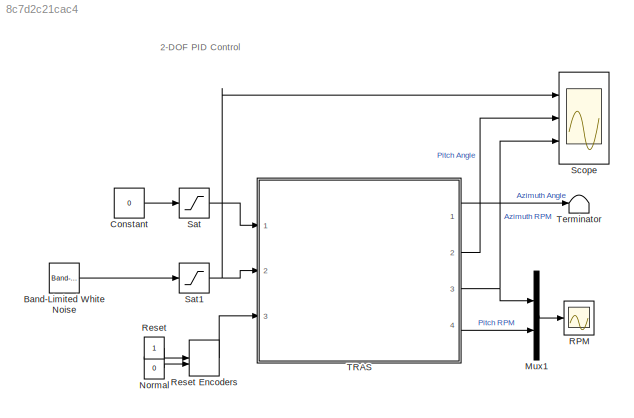
MODEL slx_8c7d2c21cac4
KIND model
CONFIG AbsTol = 1e-6
CONFIG EnableMultiTasking = off
CONFIG FixedStep = 0.01
CONFIG MaxStep = auto
CONFIG MinStep = auto
CONFIG RelTol = 1e-3
CONFIG SampleTimeConstraint = Unconstrained
CONFIG SolverName = ode5
CONFIG StartTime = 0.0
CONFIG StopTime = 9999
BLOCK [Reference] Band-Limited White Noise  REF=simulink/Sources/Band-Limited
White Noise
  Ports = [0, 1]
  SourceBlock = simulink/Sources/Band-Limited\nWhite Noise
  SourceProductBaseCode = SL
  SourceType = Band-Limited White Noise.
BLOCK [Constant] Constant
  Value = 0
BLOCK [Mux] Mux1
  DisplayOption = bar
  Inputs = 2
  Ports = [2, 1]
BLOCK [Constant] Normal
  Value = 0
BLOCK [Scope] RPM
  ExtModeLoggingTrig = on
  ExtModeUploadOption = log
  Floating = off
  NumInputPorts = 1
  Ports = [1]
  ScopeSpecificationString = Simulink.scopes.TimeScopeBlockCfg('CurrentConfiguration', extmgr.ConfigurationSet(extmgr.Configuration('Core','General UI',true),extmgr.Configuration('Core','Source UI',true),extmgr.Configuration('Sources','WiredSimulink',true,'DataLogging',true,'DataLoggingVariableName','RPM_','DataLoggingSaveFormat','StructureWithTime','DataLoggingMaxPoints','12000','DataLoggingLimitDataPoints',true,'DataLogging...<+1854ch>
BLOCK [Constant] Reset
  NameLocation = top
BLOCK [ManualSwitch] Reset Encoders
  CurrentSetting = 0
BLOCK [Saturate] Sat
  LowerLimit = -0.3
  UpperLimit = 0.8
BLOCK [Saturate] Sat1
  LowerLimit = -.8
  UpperLimit = 0.8
BLOCK [Scope] Scope
  Floating = off
  NumInputPorts = 3
  Ports = [3]
  ScopeSpecificationString = Simulink.scopes.TimeScopeBlockCfg('CurrentConfiguration', extmgr.ConfigurationSet(extmgr.Configuration('Core','General UI',true),extmgr.Configuration('Core','Source UI',true),extmgr.Configuration('Sources','WiredSimulink',true,'DataLoggingVariableName','silnik','DataLogging',true,'DataLoggingMaxPoints','80000','DataLoggingSaveFormat','StructureWithTime'),extmgr.Configuration('Visuals','Time Domain...<+2816ch>
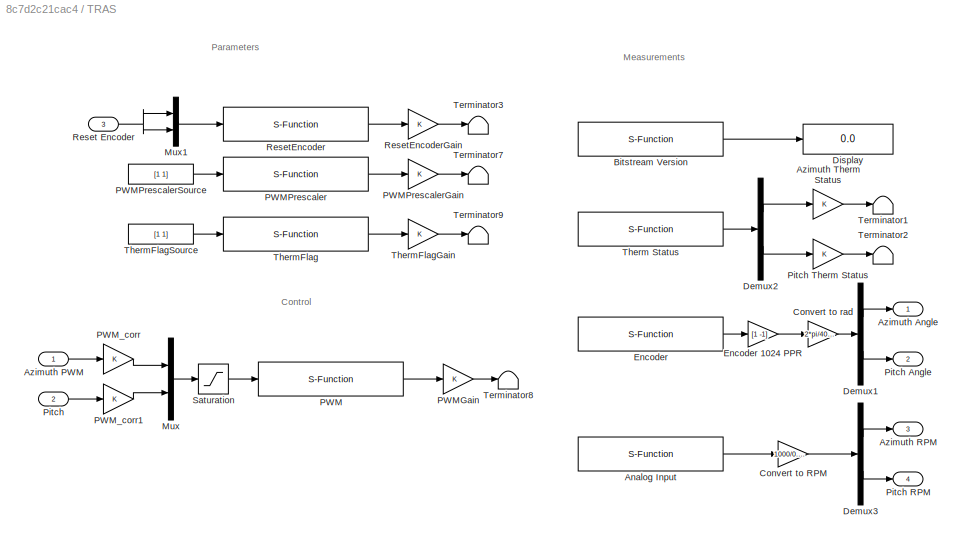
BLOCK [SubSystem] TRAS
  Ports = [3, 4]
  RequestExecContextInheritance = off
BLOCK [S-Function] TRAS/Analog Input
  EnableBusSupport = off
  FunctionName = TRAS_AnalogInput
  Parameters = BaseAddress, [1 0], [1 1], T0
  Ports = [0, 1]
  SFcnIsStateOwnerBlock = off
  SFunctionDeploymentMode = off
BLOCK [Outport] TRAS/Azimuth Angle
BLOCK [Inport] TRAS/Azimuth PWM
BLOCK [Outport] TRAS/Azimuth RPM
  Port = 3
BLOCK [Gain] TRAS/Azimuth Therm Status
  OutDataTypeStr = Inherit: Same as input
  ParamDataTypeStr = Inherit: Same as input
  SaturateOnIntegerOverflow = on
BLOCK [S-Function] TRAS/Bitstream Version
  EnableBusSupport = off
  FunctionName = TRAS_BitstreamVersion
  Parameters = BaseAddress, T0
  Ports = [0, 1]
  SFcnIsStateOwnerBlock = off
  SFunctionDeploymentMode = off
BLOCK [Gain] TRAS/Convert to RPM
  Gain = 1000/0.52/2
  OutDataTypeStr = Inherit: Same as input
  ParamDataTypeStr = Inherit: Same as input
  SaturateOnIntegerOverflow = on
BLOCK [Gain] TRAS/Convert to rad
  Gain = 2*pi/4096
  OutDataTypeStr = Inherit: Same as input
  ParamDataTypeStr = Inherit: Same as input
  SaturateOnIntegerOverflow = on
BLOCK [Demux] TRAS/Demux1
  DisplayOption = none
  Outputs = 2
  Ports = [1, 2]
BLOCK [Demux] TRAS/Demux2
  DisplayOption = none
  Outputs = 2
  Ports = [1, 2]
BLOCK [Demux] TRAS/Demux3
  DisplayOption = none
  Outputs = 2
  Ports = [1, 2]
BLOCK [Display] TRAS/Display
  Decimation = 1
  Ports = [1]
BLOCK [S-Function] TRAS/Encoder
  EnableBusSupport = off
  FunctionName = TRAS_Encoder
  Parameters = BaseAddress, T0
  Ports = [0, 1]
  SFcnIsStateOwnerBlock = off
  SFunctionDeploymentMode = off
BLOCK [Gain] TRAS/Encoder 1024 PPR
  Gain = [1 -1]
  OutDataTypeStr = Inherit: Same as input
  ParamDataTypeStr = Inherit: Same as input
  SaturateOnIntegerOverflow = on
BLOCK [Mux] TRAS/Mux
  Inputs = 2
  Ports = [2, 1]
BLOCK [Mux] TRAS/Mux1
  Inputs = 2
  Ports = [2, 1]
BLOCK [S-Function] TRAS/PWM
  EnableBusSupport = off
  FunctionName = TRAS_PWM
  Parameters = BaseAddress, T0
  Ports = [1, 1]
  SFcnIsStateOwnerBlock = off
  SFunctionDeploymentMode = off
BLOCK [Gain] TRAS/PWMGain
  OutDataTypeStr = Inherit: Same as input
  ParamDataTypeStr = Inherit: Same as input
  SaturateOnIntegerOverflow = on
BLOCK [S-Function] TRAS/PWMPrescaler
  EnableBusSupport = off
  FunctionName = TRAS_PWMPrescaler
  Parameters = BaseAddress, T0
  Ports = [1, 1]
  SFcnIsStateOwnerBlock = off
  SFunctionDeploymentMode = off
BLOCK [Gain] TRAS/PWMPrescalerGain
  OutDataTypeStr = Inherit: Same as input
  ParamDataTypeStr = Inherit: Same as input
  SaturateOnIntegerOverflow = on
BLOCK [Constant] TRAS/PWMPrescalerSource
  Value = [1 1]
BLOCK [Gain] TRAS/PWM_corr
  OutDataTypeStr = Inherit: Same as input
  ParamDataTypeStr = Inherit: Same as input
  SaturateOnIntegerOverflow = on
BLOCK [Gain] TRAS/PWM_corr1
  OutDataTypeStr = Inherit: Same as input
  ParamDataTypeStr = Inherit: Same as input
  SaturateOnIntegerOverflow = on
BLOCK [Inport] TRAS/Pitch
  Port = 2
BLOCK [Outport] TRAS/Pitch Angle
  Port = 2
BLOCK [Outport] TRAS/Pitch RPM
  Port = 4
BLOCK [Gain] TRAS/Pitch Therm Status
  OutDataTypeStr = Inherit: Same as input
  ParamDataTypeStr = Inherit: Same as input
  SaturateOnIntegerOverflow = on
BLOCK [Inport] TRAS/Reset Encoder
  Port = 3
BLOCK [S-Function] TRAS/ResetEncoder
  EnableBusSupport = off
  FunctionName = TRAS_ResetEncoder
  Parameters = BaseAddress, T0
  Ports = [1, 1]
  SFcnIsStateOwnerBlock = off
  SFunctionDeploymentMode = off
BLOCK [Gain] TRAS/ResetEncoderGain
  OutDataTypeStr = Inherit: Same as input
  ParamDataTypeStr = Inherit: Same as input
  SaturateOnIntegerOverflow = on
BLOCK [Saturate] TRAS/Saturation
  LowerLimit = -1
  UpperLimit = 1
BLOCK [Terminator] TRAS/Terminator1
BLOCK [Terminator] TRAS/Terminator2
BLOCK [Terminator] TRAS/Terminator3
BLOCK [Terminator] TRAS/Terminator7
BLOCK [Terminator] TRAS/Terminator8
BLOCK [Terminator] TRAS/Terminator9
BLOCK [S-Function] TRAS/Therm Status
  EnableBusSupport = off
  FunctionName = TRAS_PWMTherm
  Parameters = BaseAddress, T0
  Ports = [0, 1]
  SFcnIsStateOwnerBlock = off
  SFunctionDeploymentMode = off
BLOCK [S-Function] TRAS/ThermFlag 
  EnableBusSupport = off
  FunctionName = TRAS_ThermFlag
  Parameters = BaseAddress, T0
  Ports = [1, 1]
  SFcnIsStateOwnerBlock = off
  SFunctionDeploymentMode = off
BLOCK [Gain] TRAS/ThermFlagGain
  OutDataTypeStr = Inherit: Same as input
  ParamDataTypeStr = Inherit: Same as input
  SaturateOnIntegerOverflow = on
BLOCK [Constant] TRAS/ThermFlagSource
  Value = [1 1]
BLOCK [Terminator] Terminator
ANNOTATION (root): 2-DOF PID Control
ANNOTATION TRAS: Control
ANNOTATION TRAS: Measurements
ANNOTATION TRAS: Parameters
LINE Band-Limited White Noise:1 -> Sat1:1
LINE Constant:1 -> Sat:1
LINE Mux1:1 -> RPM:1
LINE Normal:1 -> Reset Encoders:2
LINE Reset Encoders:1 -> TRAS:3
LINE Reset:1 -> Reset Encoders:1
NET Sat1:1 -> Scope:1, TRAS:2
LINE Sat:1 -> TRAS:1
LINE TRAS/Analog Input:1 -> TRAS/Convert to RPM:1
LINE TRAS/Azimuth PWM:1 -> TRAS/PWM_corr:1
LINE TRAS/Azimuth Therm Status:1 -> TRAS/Terminator1:1
LINE TRAS/Bitstream Version:1 -> TRAS/Display:1
LINE TRAS/Convert to RPM:1 -> TRAS/Demux3:1
LINE TRAS/Convert to rad:1 -> TRAS/Demux1:1
LINE TRAS/Demux1:1 -> TRAS/Azimuth Angle:1
LINE TRAS/Demux1:2 -> TRAS/Pitch Angle:1
LINE TRAS/Demux2:1 -> TRAS/Azimuth Therm Status:1
LINE TRAS/Demux2:2 -> TRAS/Pitch Therm Status:1
LINE TRAS/Demux3:1 -> TRAS/Azimuth RPM:1
LINE TRAS/Demux3:2 -> TRAS/Pitch RPM:1
LINE TRAS/Encoder 1024 PPR:1 -> TRAS/Convert to rad:1
LINE TRAS/Encoder:1 -> TRAS/Encoder 1024 PPR:1
LINE TRAS/Mux1:1 -> TRAS/ResetEncoder:1
LINE TRAS/Mux:1 -> TRAS/Saturation:1
LINE TRAS/PWM:1 -> TRAS/PWMGain:1
LINE TRAS/PWMGain:1 -> TRAS/Terminator8:1
LINE TRAS/PWMPrescaler:1 -> TRAS/PWMPrescalerGain:1
LINE TRAS/PWMPrescalerGain:1 -> TRAS/Terminator7:1
LINE TRAS/PWMPrescalerSource:1 -> TRAS/PWMPrescaler:1
LINE TRAS/PWM_corr1:1 -> TRAS/Mux:2
LINE TRAS/PWM_corr:1 -> TRAS/Mux:1
LINE TRAS/Pitch Therm Status:1 -> TRAS/Terminator2:1
LINE TRAS/Pitch:1 -> TRAS/PWM_corr1:1
NET TRAS/Reset Encoder:1 -> TRAS/Mux1:1, TRAS/Mux1:2
LINE TRAS/ResetEncoder:1 -> TRAS/ResetEncoderGain:1
LINE TRAS/ResetEncoderGain:1 -> TRAS/Terminator3:1
LINE TRAS/Saturation:1 -> TRAS/PWM:1
LINE TRAS/Therm Status:1 -> TRAS/Demux2:1
LINE TRAS/ThermFlag :1 -> TRAS/ThermFlagGain:1
LINE TRAS/ThermFlagGain:1 -> TRAS/Terminator9:1
LINE TRAS/ThermFlagSource:1 -> TRAS/ThermFlag :1
LINE TRAS:1 -> Terminator:1
LINE TRAS:2 -> Scope:2
NET TRAS:3 -> Mux1:1, Scope:3
LINE TRAS:4 -> Mux1:2
note: NET lines group one-source signal fan-out (src -> all destinations, sorted); 1:1 wires keep LINE
